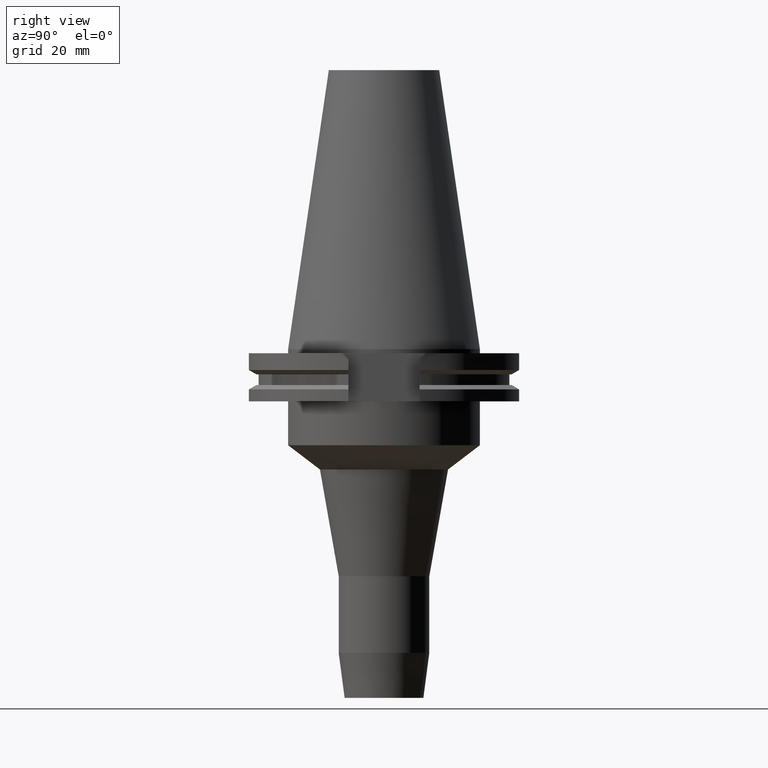
[diagram: clean part render]
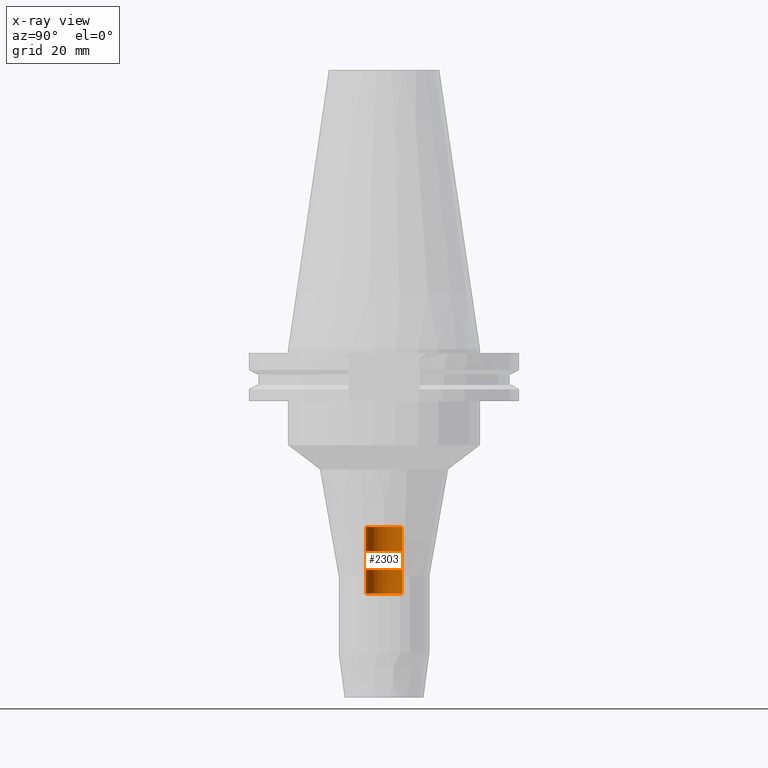
[diagram: x-ray — body ghosted, one internal face saturated and labeled with its STEP entity id]
A machine part, right view, then the same camera in x-ray: the body is ghosted and one INTERNAL B-rep face — a face not visible from any outside direction — is saturated and labeled: STEP entity #2303.
In plain terms, the highlighted cylindrical surface (edge-blend (fillet) strip) has radius 6.6 mm, axis along (0, 0, 1).
Its self-contained STEP definition (entity closure, byte-faithful):
#996=CARTESIAN_POINT('',(0.E0,0.E0,-8.9E1));
#997=DIRECTION('',(0.E0,0.E0,-1.E0));
#998=DIRECTION('',(0.E0,-1.E0,0.E0));
#999=AXIS2_PLACEMENT_3D('',#996,#997,#998);
#1028=DIRECTION('',(0.E0,0.E0,1.E0));
#1029=VECTOR('',#1028,2.42E1);
#1030=CARTESIAN_POINT('',(0.E0,-6.6E0,-8.9E1));
#1031=LINE('',#1030,#1029);
#1035=DIRECTION('',(0.E0,0.E0,1.E0));
#1036=VECTOR('',#1035,2.42E1);
#1037=CARTESIAN_POINT('',(0.E0,6.6E0,-8.9E1));
#1038=LINE('',#1037,#1036);
#1050=CARTESIAN_POINT('',(0.E0,0.E0,-6.48E1));
#1051=DIRECTION('',(0.E0,0.E0,1.E0));
#1052=DIRECTION('',(0.E0,1.E0,0.E0));
#1053=AXIS2_PLACEMENT_3D('',#1050,#1051,#1052);
#1376=CARTESIAN_POINT('',(0.E0,-6.6E0,-8.9E1));
#1377=CARTESIAN_POINT('',(0.E0,6.6E0,-8.9E1));
#1378=VERTEX_POINT('',#1376);
#1379=VERTEX_POINT('',#1377);
#1380=CARTESIAN_POINT('',(0.E0,6.6E0,-6.48E1));
#1381=VERTEX_POINT('',#1380);
#1382=CARTESIAN_POINT('',(0.E0,-6.6E0,-6.48E1));
#1383=VERTEX_POINT('',#1382);
#2289=CARTESIAN_POINT('',(0.E0,0.E0,-1.3843E2));
#2290=DIRECTION('',(0.E0,0.E0,1.E0));
#2291=DIRECTION('',(0.E0,1.E0,0.E0));
#2292=AXIS2_PLACEMENT_3D('',#2289,#2290,#2291);
#2293=CYLINDRICAL_SURFACE('',#2292,6.6E0);
#2295=ORIENTED_EDGE('',*,*,#2294,.F.);
#2296=ORIENTED_EDGE('',*,*,#2278,.F.);
#2298=ORIENTED_EDGE('',*,*,#2297,.T.);
#2300=ORIENTED_EDGE('',*,*,#2299,.F.);
#2301=EDGE_LOOP('',(#2295,#2296,#2298,#2300));
#2302=FACE_OUTER_BOUND('',#2301,.F.);
#1000=CIRCLE('',#999,6.6E0);
#1054=CIRCLE('',#1053,6.6E0);
#2278=EDGE_CURVE('',#1378,#1379,#1000,.T.);
#2294=EDGE_CURVE('',#1379,#1381,#1038,.T.);
#2297=EDGE_CURVE('',#1378,#1383,#1031,.T.);
#2299=EDGE_CURVE('',#1381,#1383,#1054,.T.);
#2303=ADVANCED_FACE('',(#2302),#2293,.F.);